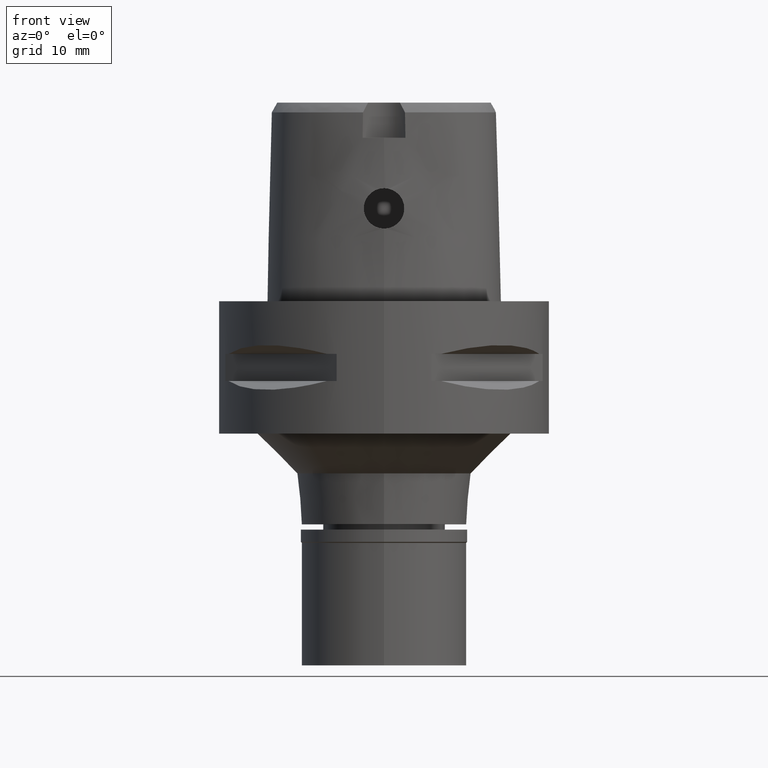
[diagram: clean part render]
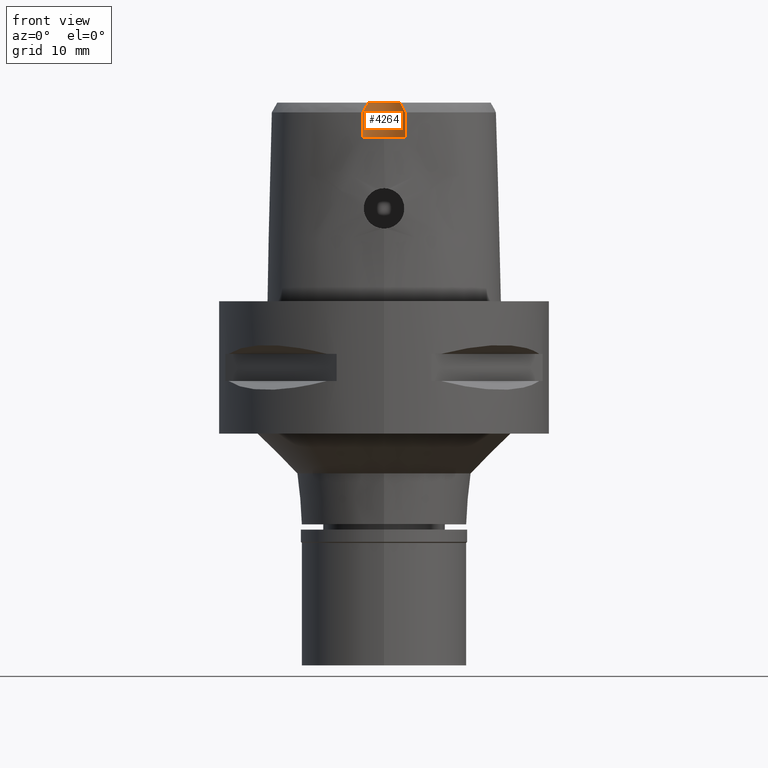
[diagram: same view with one face highlighted and labeled with its STEP entity id]
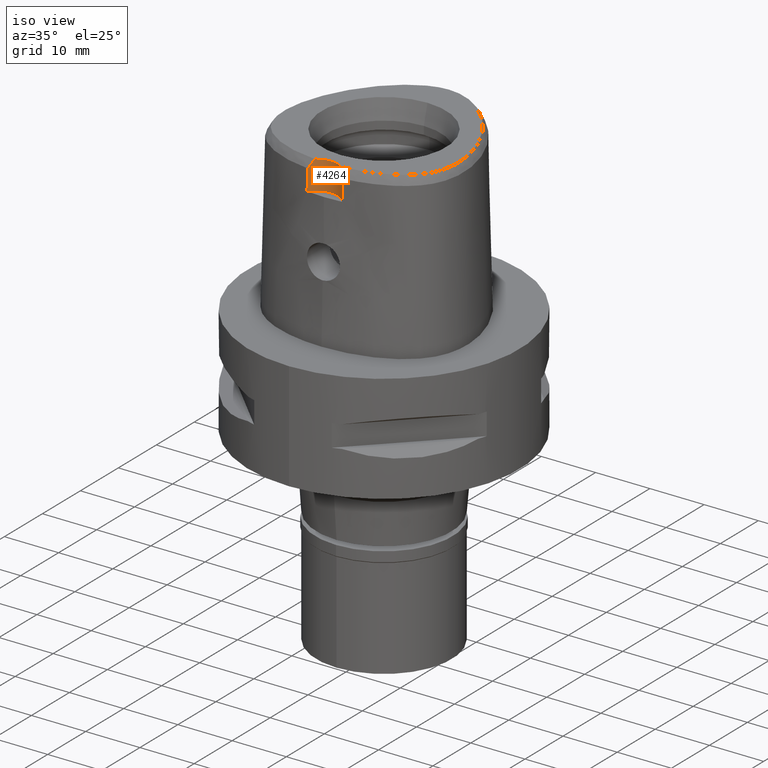
[diagram: same view with one face highlighted and labeled with its STEP entity id]
A machine part, front view. The second image highlights one B-rep face of the part: STEP entity #4264.
A second angle (iso view) of the same face is appended — the face is thin or edge-on in the first view.
In plain terms, the highlighted cylindrical surface (edge-blend (fillet) strip) has radius 4 mm, axis along (0, 0, 1).
Its self-contained STEP definition (entity closure, byte-faithful):
#33 = CARTESIAN_POINT ( 'NONE',  ( -2.406542353497000075, -14.80491723099000012, 30.00000000000000000 ) ) ;
#159 = DIRECTION ( 'NONE',  ( -0.8087802799973040635, 0.5881109237954031954, 0.0000000000000000000 ) ) ;
#269 = EDGE_CURVE ( 'NONE', #3240, #1461, #357, .T. ) ;
#300 = ORIENTED_EDGE ( 'NONE', *, *, #321, .T. ) ;
#316 = EDGE_LOOP ( 'NONE', ( #2834, #300, #3522, #3428, #3930, #927 ) ) ;
#321 = EDGE_CURVE ( 'NONE', #678, #3286, #1207, .T. ) ;
#357 = B_SPLINE_CURVE_WITH_KNOTS ( 'NONE', 3,
 ( #4166, #3175, #4239, #3067 ),
 .UNSPECIFIED., .F., .F.,
 ( 4, 4 ),
 ( 0.0000000000000000000, 1.000000000000000000 ),
 .UNSPECIFIED. ) ;
#402 = CARTESIAN_POINT ( 'NONE',  ( -3.168920966622999824, -15.55911077538999976, 28.52071192346999950 ) ) ;
#520 = DIRECTION ( 'NONE',  ( 1.000000000000000000, 0.0000000000000000000, 0.0000000000000000000 ) ) ;
#678 = VERTEX_POINT ( 'NONE', #897 ) ;
#688 = CARTESIAN_POINT ( 'NONE',  ( -2.935844349978500301, -15.25651563092075591, 29.10537812861775109 ) ) ;
#735 = CARTESIAN_POINT ( 'NONE',  ( 3.168920890822999770, -15.55911073834000113, 28.52071374672999582 ) ) ;
#848 = CARTESIAN_POINT ( 'NONE',  ( -2.406542353497000075, -14.80491723099000012, 30.00000000000000000 ) ) ;
#858 = EDGE_CURVE ( 'NONE', #4182, #3240, #4368, .T. ) ;
#897 = CARTESIAN_POINT ( 'NONE',  ( -3.168920966622999824, -15.55911077538999976, 28.52071192346999950 ) ) ;
#927 = ORIENTED_EDGE ( 'NONE', *, *, #3381, .T. ) ;
#929 = CARTESIAN_POINT ( 'NONE',  ( -3.235121119988999983, -15.64755630481999837, 24.69999999999999929 ) ) ;
#1207 = B_SPLINE_CURVE_WITH_KNOTS ( 'NONE', 3,
 ( #1996, #3910, #3809, #4543 ),
 .UNSPECIFIED., .F., .F.,
 ( 4, 4 ),
 ( 0.0000000000000000000, 1.000000000000000000 ),
 .UNSPECIFIED. ) ;
#1461 = VERTEX_POINT ( 'NONE', #2799 ) ;
#1627 = EDGE_CURVE ( 'NONE', #3462, #678, #1759, .T. ) ;
#1653 = CARTESIAN_POINT ( 'NONE',  ( 3.168920890822999770, -15.55911073834000113, 28.52071374672999582 ) ) ;
#1679 = CARTESIAN_POINT ( 'NONE',  ( 3.191384142201736829, -15.58827398948734633, 27.24714251809000132 ) ) ;
#1759 = B_SPLINE_CURVE_WITH_KNOTS ( 'NONE', 3,
 ( #33, #2202, #688, #402 ),
 .UNSPECIFIED., .F., .F.,
 ( 4, 4 ),
 ( 0.0000000000000000000, 1.000000000000000000 ),
 .UNSPECIFIED. ) ;
#1996 = CARTESIAN_POINT ( 'NONE',  ( -3.168920966622999824, -15.55911077538999976, 28.52071192346999950 ) ) ;
#2029 = DIRECTION ( 'NONE',  ( 0.0000000000000000000, 0.0000000000000000000, 1.000000000000000000 ) ) ;
#2045 = CARTESIAN_POINT ( 'NONE',  ( 0.0000000000000000000, -18.00000000000000000, 24.69999999999999929 ) ) ;
#2069 = DIRECTION ( 'NONE',  ( 0.0000000000000000000, 0.0000000000000000000, -1.000000000000000000 ) ) ;
#2202 = CARTESIAN_POINT ( 'NONE',  ( -2.674237912647290383, -15.00654602983862951, 29.59847415412775007 ) ) ;
#2622 = CIRCLE ( 'NONE', #4376, 4.000000000000000000 ) ;
#2756 = CARTESIAN_POINT ( 'NONE',  ( 3.213444788215948034, -15.61774735051721308, 25.97357128944999971 ) ) ;
#2799 = CARTESIAN_POINT ( 'NONE',  ( 2.406543924163999648, -14.80491841401999942, 30.00000000000000000 ) ) ;
#2834 = ORIENTED_EDGE ( 'NONE', *, *, #1627, .T. ) ;
#2853 = AXIS2_PLACEMENT_3D ( 'NONE', #3860, #2029, #4496 ) ;
#3067 = CARTESIAN_POINT ( 'NONE',  ( 2.406543924163999648, -14.80491841401999942, 30.00000000000000000 ) ) ;
#3119 = CARTESIAN_POINT ( 'NONE',  ( 3.235096591086000117, -15.64751801257999908, 24.70000006080999810 ) ) ;
#3134 = CYLINDRICAL_SURFACE ( 'NONE', #3475, 4.000000000000000000 ) ;
#3175 = CARTESIAN_POINT ( 'NONE',  ( 2.935843368189277047, -15.25651436812933248, 29.10537844857777401 ) ) ;
#3240 = VERTEX_POINT ( 'NONE', #735 ) ;
#3286 = VERTEX_POINT ( 'NONE', #929 ) ;
#3381 = EDGE_CURVE ( 'NONE', #1461, #3462, #4445, .T. ) ;
#3395 = CARTESIAN_POINT ( 'NONE',  ( 0.0000000000000000000, -18.00000000000000000, 30.00000000000000000 ) ) ;
#3428 = ORIENTED_EDGE ( 'NONE', *, *, #858, .T. ) ;
#3462 = VERTEX_POINT ( 'NONE', #848 ) ;
#3475 = AXIS2_PLACEMENT_3D ( 'NONE', #3395, #3495, #520 ) ;
#3495 = DIRECTION ( 'NONE',  ( 0.0000000000000000000, 0.0000000000000000000, 1.000000000000000000 ) ) ;
#3522 = ORIENTED_EDGE ( 'NONE', *, *, #4506, .T. ) ;
#3809 = CARTESIAN_POINT ( 'NONE',  ( -3.213444811939455636, -15.61774738279276953, 25.97357064115666603 ) ) ;
#3860 = CARTESIAN_POINT ( 'NONE',  ( 0.0000000000000000000, -18.00000000000000000, 30.00000000000000000 ) ) ;
#3873 = CARTESIAN_POINT ( 'NONE',  ( 3.235096591086000117, -15.64751801257999908, 24.70000006080999810 ) ) ;
#3910 = CARTESIAN_POINT ( 'NONE',  ( -3.191384176940533557, -15.58827403572775339, 27.24714128231333277 ) ) ;
#3930 = ORIENTED_EDGE ( 'NONE', *, *, #269, .T. ) ;
#4132 = FACE_OUTER_BOUND ( 'NONE', #316, .T. ) ;
#4166 = CARTESIAN_POINT ( 'NONE',  ( 3.168920890822999770, -15.55911073834000113, 28.52071374672999582 ) ) ;
#4182 = VERTEX_POINT ( 'NONE', #3873 ) ;
#4239 = CARTESIAN_POINT ( 'NONE',  ( 2.674237079557844066, -15.00654560860557574, 29.59847386633443733 ) ) ;
#4264 = ADVANCED_FACE ( 'NONE', ( #4132 ), #3134, .F. ) ;
#4368 = B_SPLINE_CURVE_WITH_KNOTS ( 'NONE', 3,
 ( #3119, #2756, #1679, #1653 ),
 .UNSPECIFIED., .F., .F.,
 ( 4, 4 ),
 ( 0.0000000000000000000, 1.000000000000000000 ),
 .UNSPECIFIED. ) ;
#4376 = AXIS2_PLACEMENT_3D ( 'NONE', #2045, #2069, #159 ) ;
#4445 = CIRCLE ( 'NONE', #2853, 4.000000000000000888 ) ;
#4496 = DIRECTION ( 'NONE',  ( 0.6016359810410799591, 0.7987703964949736113, 0.0000000000000000000 ) ) ;
#4506 = EDGE_CURVE ( 'NONE', #3286, #4182, #2622, .T. ) ;
#4543 = CARTESIAN_POINT ( 'NONE',  ( -3.235121119988999983, -15.64755630481999837, 24.69999999999999929 ) ) ;